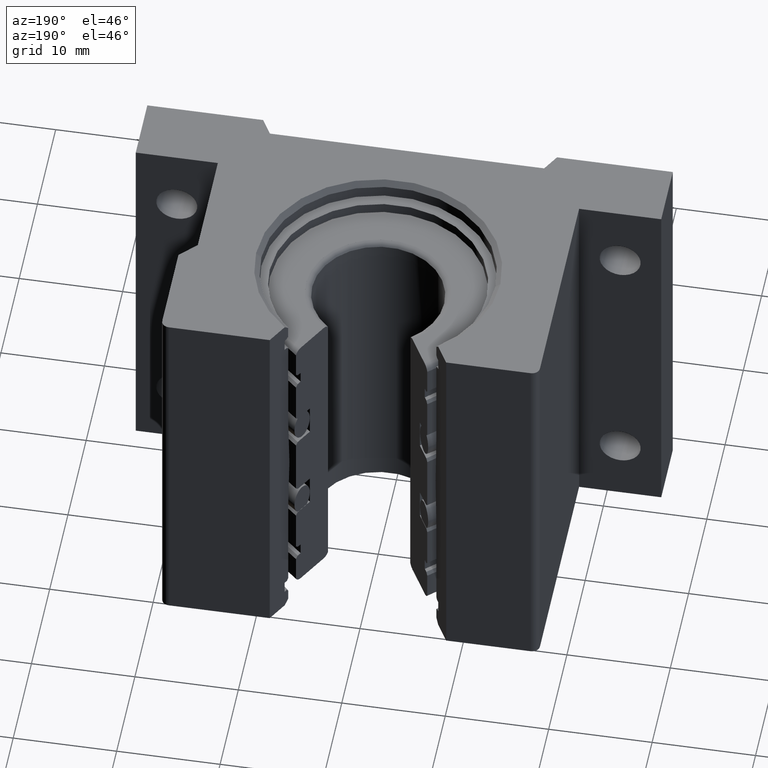
[diagram: clean part render]
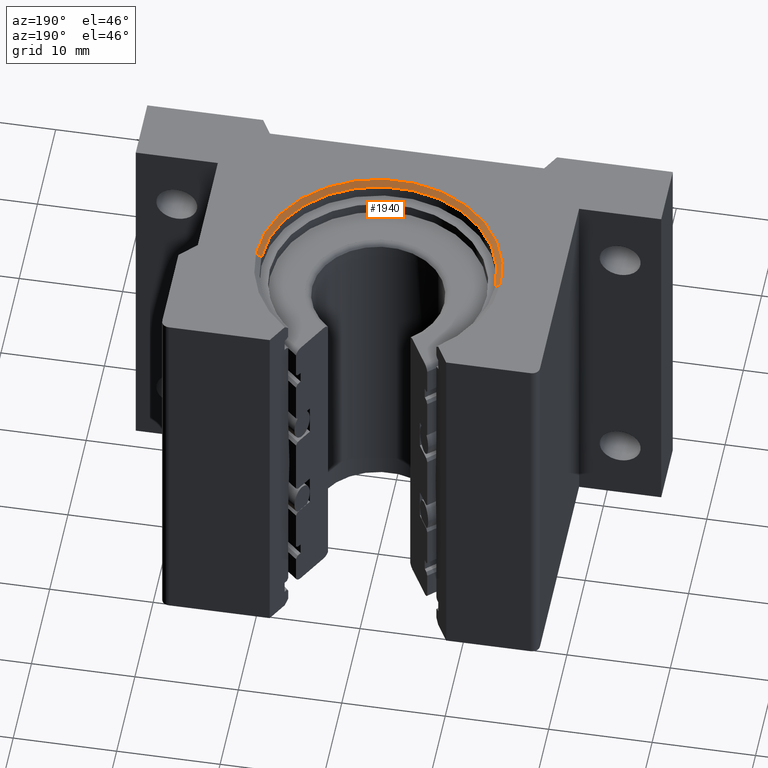
[diagram: same view with one face highlighted and labeled with its STEP entity id]
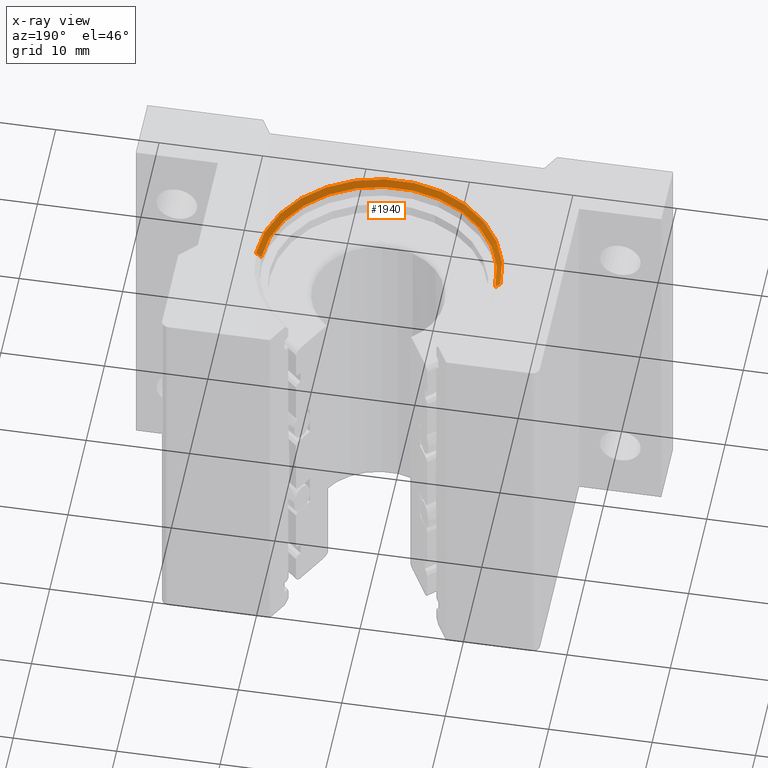
[diagram: x-ray of the same camera — body ghosted, the highlighted face saturated]
A machine part, auxiliary view. The second image highlights one B-rep face of the part: STEP entity #1940.
The next image is the same camera in x-ray: the body ghosted, the highlighted face saturated — about 0% of this face is hidden behind the body in this view.
In plain terms, the highlighted conical surface has half-angle 45 deg.
Its self-contained STEP definition (entity closure, byte-faithful):
#1056 = CARTESIAN_POINT ( 'NONE',  ( -0.4650000000000000244, 5.694607616035193362E-17, 0.7499999999999998890 ) ) ;
#1399 = CONICAL_SURFACE ( 'NONE', #2586, 0.4450000000000000067, 0.7853981633974397303 ) ;
#1404 = EDGE_CURVE ( 'NONE', #6409, #3033, #8680, .T. ) ;
#1790 = VECTOR ( 'NONE', #3735, 39.37007874015748143 ) ;
#1904 = EDGE_CURVE ( 'NONE', #3332, #4035, #5346, .T. ) ;
#1940 = ADVANCED_FACE ( 'NONE', ( #8220 ), #1399, .F. ) ;
#1991 = CARTESIAN_POINT ( 'NONE',  ( 0.4450000000000000067, 0.000000000000000000, 0.7299999999999995381 ) ) ;
#2275 = DIRECTION ( 'NONE',  ( 1.000000000000000000, 0.000000000000000000, 0.000000000000000000 ) ) ;
#2490 = DIRECTION ( 'NONE',  ( 0.000000000000000000, 0.000000000000000000, 1.000000000000000000 ) ) ;
#2586 = AXIS2_PLACEMENT_3D ( 'NONE', #2760, #5072, #6937 ) ;
#2595 = EDGE_CURVE ( 'NONE', #3332, #3033, #5211, .T. ) ;
#2760 = CARTESIAN_POINT ( 'NONE',  ( 0.000000000000000000, 0.000000000000000000, 0.7299999999999995381 ) ) ;
#2973 = LINE ( 'NONE', #10481, #8137 ) ;
#3033 = VERTEX_POINT ( 'NONE', #1056 ) ;
#3332 = VERTEX_POINT ( 'NONE', #9469 ) ;
#3372 = EDGE_CURVE ( 'NONE', #4035, #6409, #2973, .T. ) ;
#3682 = CARTESIAN_POINT ( 'NONE',  ( -0.4450000000000000067, 5.449678256205722031E-17, 0.7299999999999995381 ) ) ;
#3735 = DIRECTION ( 'NONE',  ( -0.7071067811865414665, 8.659560562354858902E-17, 0.7071067811865535679 ) ) ;
#4035 = VERTEX_POINT ( 'NONE', #1991 ) ;
#4816 = CARTESIAN_POINT ( 'NONE',  ( 0.000000000000000000, 0.000000000000000000, 0.7299999999999995381 ) ) ;
#5072 = DIRECTION ( 'NONE',  ( 0.000000000000000000, 0.000000000000000000, 1.000000000000000000 ) ) ;
#5211 = LINE ( 'NONE', #3682, #1790 ) ;
#5346 = CIRCLE ( 'NONE', #10341, 0.4450000000000000067 ) ;
#5605 = DIRECTION ( 'NONE',  ( 0.000000000000000000, -0.000000000000000000, -1.000000000000000000 ) ) ;
#5847 = EDGE_LOOP ( 'NONE', ( #9144, #9904, #10040, #9284 ) ) ;
#6409 = VERTEX_POINT ( 'NONE', #10189 ) ;
#6451 = DIRECTION ( 'NONE',  ( 0.7071067811865414665, 0.000000000000000000, 0.7071067811865535679 ) ) ;
#6937 = DIRECTION ( 'NONE',  ( 1.000000000000000000, 0.000000000000000000, 0.000000000000000000 ) ) ;
#7414 = CARTESIAN_POINT ( 'NONE',  ( 0.000000000000000000, 0.000000000000000000, 0.7499999999999998890 ) ) ;
#7663 = AXIS2_PLACEMENT_3D ( 'NONE', #7414, #5605, #2275 ) ;
#8137 = VECTOR ( 'NONE', #6451, 39.37007874015748143 ) ;
#8220 = FACE_OUTER_BOUND ( 'NONE', #5847, .T. ) ;
#8680 = CIRCLE ( 'NONE', #7663, 0.4650000000000000244 ) ;
#9144 = ORIENTED_EDGE ( 'NONE', *, *, #1904, .F. ) ;
#9284 = ORIENTED_EDGE ( 'NONE', *, *, #3372, .F. ) ;
#9469 = CARTESIAN_POINT ( 'NONE',  ( -0.4450000000000000067, 5.449678256205722031E-17, 0.7299999999999995381 ) ) ;
#9904 = ORIENTED_EDGE ( 'NONE', *, *, #2595, .T. ) ;
#10040 = ORIENTED_EDGE ( 'NONE', *, *, #1404, .F. ) ;
#10189 = CARTESIAN_POINT ( 'NONE',  ( 0.4650000000000000244, 0.000000000000000000, 0.7499999999999998890 ) ) ;
#10341 = AXIS2_PLACEMENT_3D ( 'NONE', #4816, #2490, #10592 ) ;
#10481 = CARTESIAN_POINT ( 'NONE',  ( 0.4450000000000000067, 0.000000000000000000, 0.7299999999999995381 ) ) ;
#10592 = DIRECTION ( 'NONE',  ( 1.000000000000000000, 0.000000000000000000, 0.000000000000000000 ) ) ;